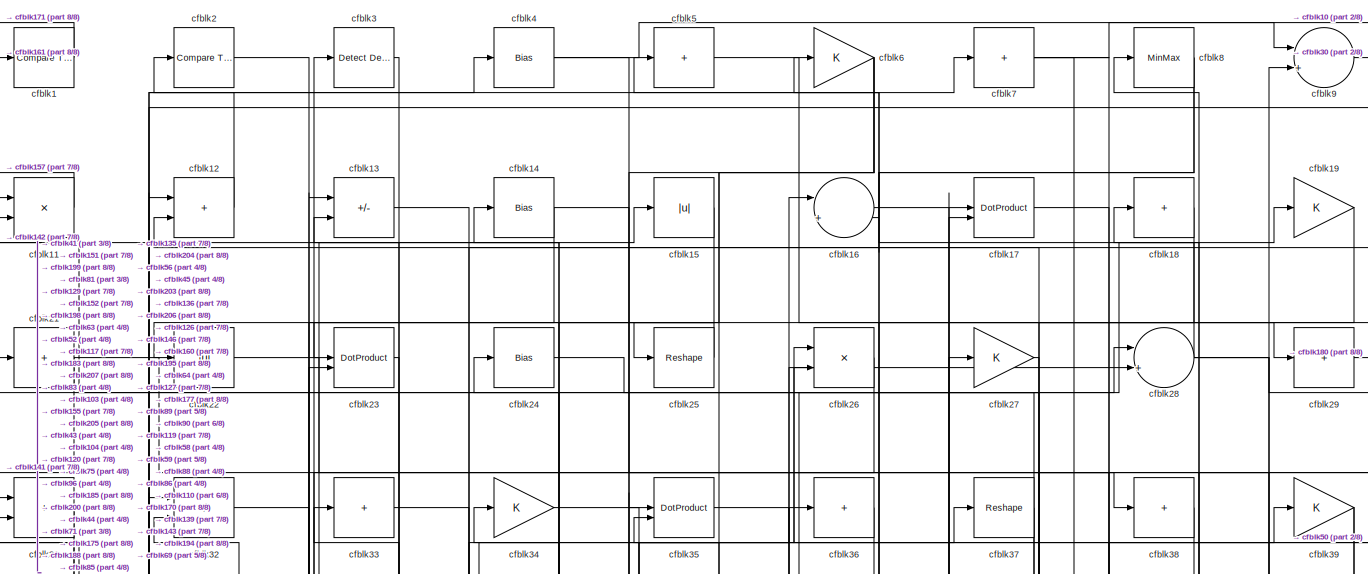
[diagram: root canvas - part 1/8, full width, top band]
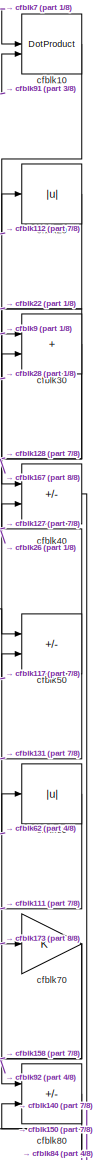
[diagram: root canvas - part 2/8, top right region]
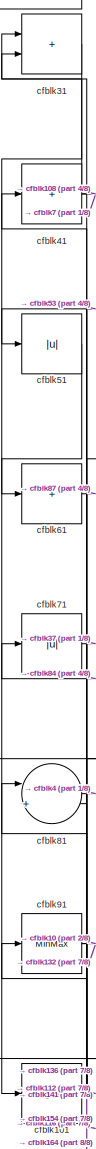
[diagram: root canvas - part 3/8, middle left region]
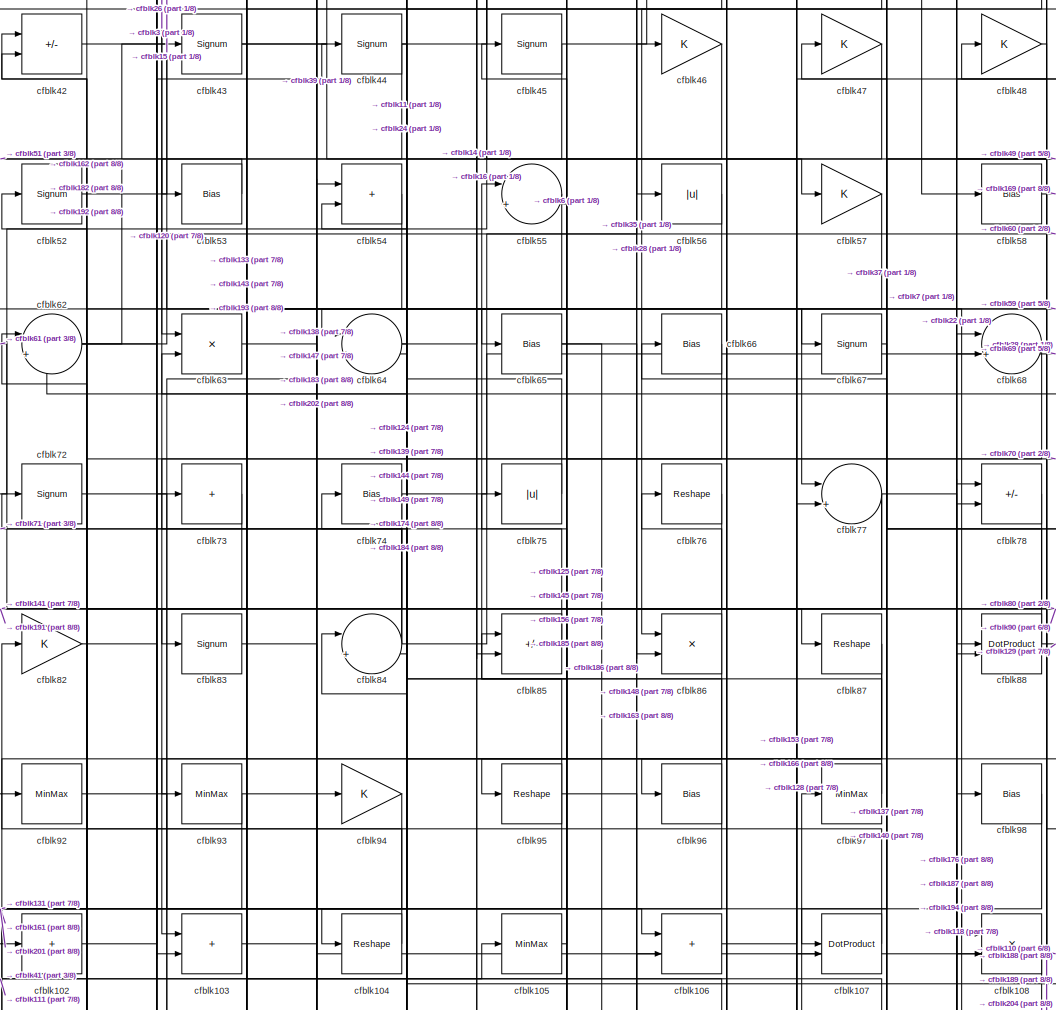
[diagram: root canvas - part 4/8, central region]
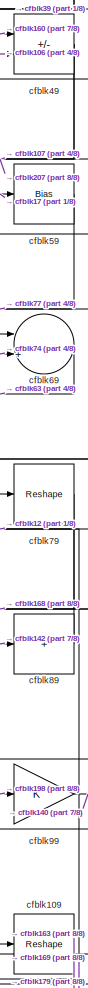
[diagram: root canvas - part 5/8, middle right region]
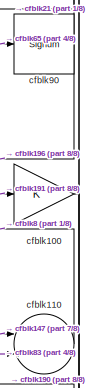
[diagram: root canvas - part 6/8, middle right region]
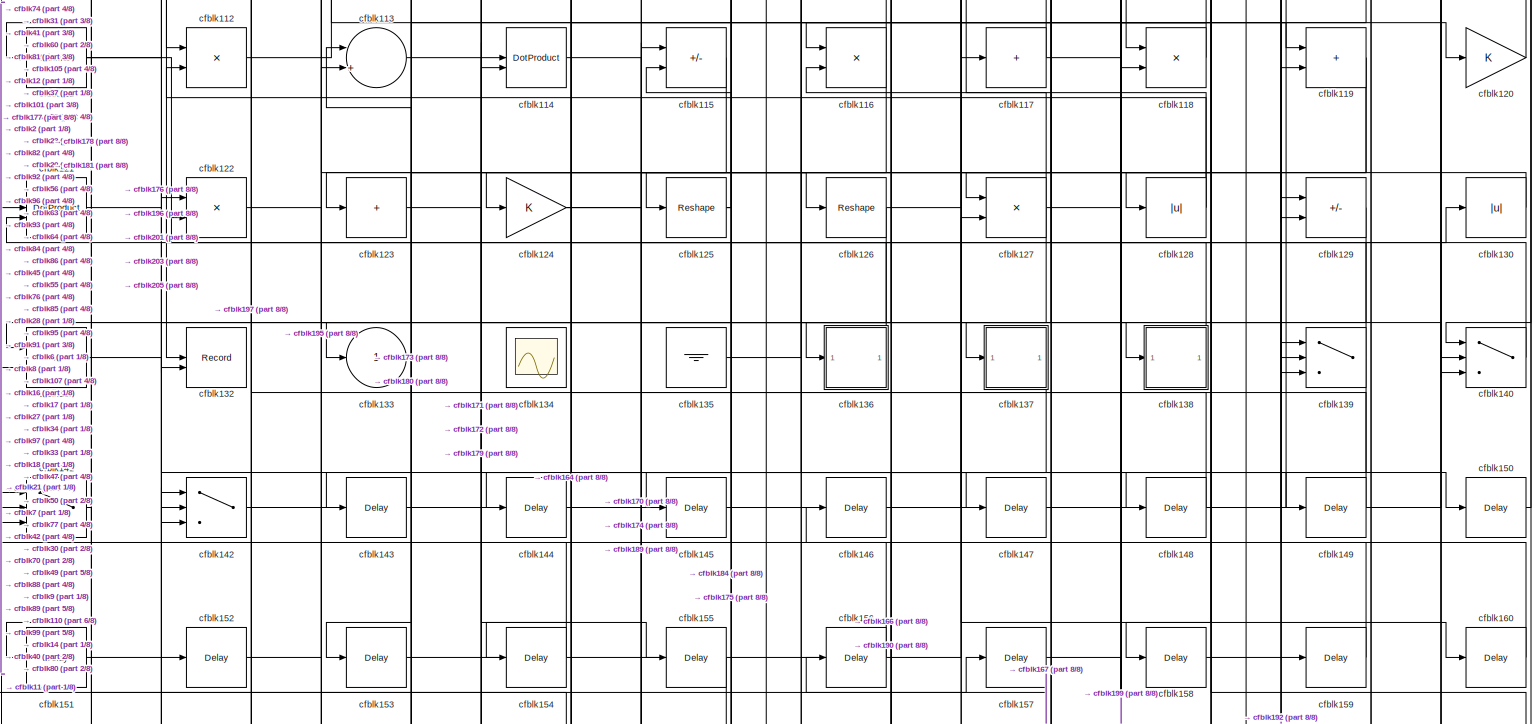
[diagram: root canvas - part 7/8, full width, middle band]
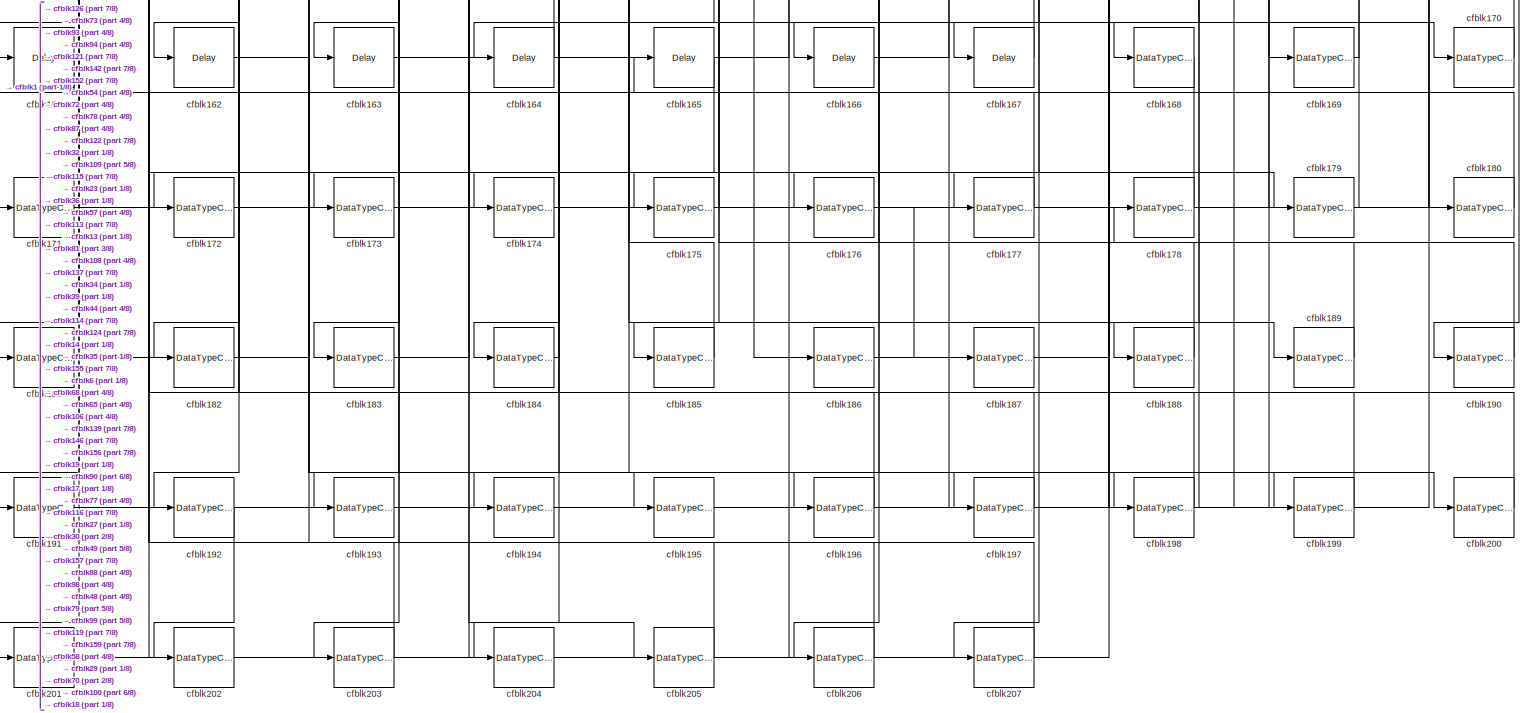
[diagram: root canvas - part 8/8, full width, bottom band]
MODEL slx_b92363ffedde
KIND model
CONFIG AbsTol = auto
CONFIG EnableMultiTasking = off
CONFIG FixedStep = auto
CONFIG MaxStep = auto
CONFIG MinStep = auto
CONFIG RelTol = 1e-3
CONFIG SampleTimeConstraint = Unconstrained
CONFIG SolverName = VariableStepAuto
CONFIG StartTime = 0.0
CONFIG StopTime = 10.0
BLOCK [Reference] cfblk1  REF=hdlsllib/Logic and Bit
Operations/Compare
To Zero
  SourceBlock = hdlsllib/Logic and Bit\nOperations/Compare\nTo Zero
  SourceType = Compare To Zero
BLOCK [DotProduct] cfblk10
  OutDataTypeStr = Inherit: Inherit via internal rule
BLOCK [Gain] cfblk100
BLOCK [Signum] cfblk101
BLOCK [Sum] cfblk102
  IconShape = rectangular
  Inputs = +
BLOCK [Sum] cfblk103
  IconShape = rectangular
BLOCK [Reshape] cfblk104
BLOCK [MinMax] cfblk105
BLOCK [Sum] cfblk106
  IconShape = rectangular
BLOCK [DotProduct] cfblk107
  OutDataTypeStr = Inherit: Inherit via internal rule
BLOCK [Product] cfblk108
  Inputs = */
  RndMeth = Zero
  SaturateOnIntegerOverflow = on
BLOCK [Reshape] cfblk109
BLOCK [Product] cfblk11
  Inputs = */
  RndMeth = Zero
  SaturateOnIntegerOverflow = on
BLOCK [Sum] cfblk110
  Inputs = |++
BLOCK [MinMax] cfblk111
BLOCK [Product] cfblk112
  Inputs = */
  RndMeth = Zero
  SaturateOnIntegerOverflow = on
BLOCK [Sum] cfblk113
  Inputs = |++
BLOCK [DotProduct] cfblk114
  OutDataTypeStr = Inherit: Inherit via internal rule
BLOCK [Sum] cfblk115
  IconShape = rectangular
  Inputs = +-
BLOCK [Product] cfblk116
  Inputs = */
  RndMeth = Zero
  SaturateOnIntegerOverflow = on
BLOCK [Sum] cfblk117
  IconShape = rectangular
  Inputs = +
BLOCK [Product] cfblk118
  Inputs = */
  RndMeth = Zero
  SaturateOnIntegerOverflow = on
BLOCK [Sum] cfblk119
  IconShape = rectangular
BLOCK [Sum] cfblk12
  IconShape = rectangular
BLOCK [Gain] cfblk120
BLOCK [DotProduct] cfblk121
  OutDataTypeStr = Inherit: Inherit via internal rule
BLOCK [Product] cfblk122
  Inputs = */
  RndMeth = Zero
  SaturateOnIntegerOverflow = on
BLOCK [Sum] cfblk123
  IconShape = rectangular
  Inputs = +
BLOCK [Gain] cfblk124
BLOCK [Reshape] cfblk125
BLOCK [Reshape] cfblk126
BLOCK [Product] cfblk127
  Inputs = */
  RndMeth = Zero
  SaturateOnIntegerOverflow = on
BLOCK [Abs] cfblk128
  SaturateOnIntegerOverflow = off
BLOCK [Sum] cfblk129
  IconShape = rectangular
  Inputs = +-
BLOCK [Sum] cfblk13
  IconShape = rectangular
  Inputs = +-
BLOCK [Abs] cfblk130
  SaturateOnIntegerOverflow = off
BLOCK [Product] cfblk131
  Inputs = */
  RndMeth = Zero
  SaturateOnIntegerOverflow = on
BLOCK [Record] cfblk132
  CompatibilityTag = XY
  FileSettingsInternal = {"entries":[{"content":{"excelSettings":{"content":{},"type":"Streamout.ExcelSettings"}},"type":"Streamout.FileSettingStorage","uuid":""}],"packageUris":["http:\/\/schema.mathworks.com\/mf0\/streamout_blocks\/R2020a"],"version":"1.0"}
  Layout = [1 1]
  SignalsInternal = {"entries":[{"content":{"signals":[{"content":{"blockPath":[],"dimensions":[1],"domain":"","lineColor":"#a2142f","plots":[1],"port":1,"signalID":2175,"signalName":"XY Graph:1"},"type":"RecordBlkView.Signal","uuid":""},{"content":{"blockPath":[],"dimensions":[1],"domain":"","lineColor":"#139fff","plots":[1],"port":2,"signalID":2178,"signalName":"XY Graph:2"},"type":"RecordBlkView.Signal","uuid":""}...<+146ch>
  VisualizationBindings = {"xyplotplugin":{"info":[{"series":[{"bindingParametersList":[{"parameter":"X-Axis","signalID":2175,"signalName":"XY Graph:1"},{"parameter":"Y-Axis","signalID":2178,"signalName":"XY Graph:2"}],"seriesID":40184}],"subplotID":1}]}}
  st = -1
BLOCK [Outport] cfblk133
  VectorParamsAs1DForOutWhenUnconnected = off
BLOCK [Scope] cfblk134
  Floating = on
  NumInputPorts = 1
  ScopeSpecificationString = Simulink.scopes.TimeScopeBlockCfg('CurrentConfiguration', extmgr.ConfigurationSet(extmgr.Configuration('Core','General UI',true,'FigureColor',[0.156862745098039 0.156862745098039 0.156862745098039]),extmgr.Configuration('Core','Source UI',true),extmgr.Configuration('Sources','WiredSimulink',true,'DataLoggingVariableName','ScopeData1','DataLoggingSaveFormat','StructureWithTime','DataLoggingLimitDat...<+2713ch>
BLOCK [Ground] cfblk135
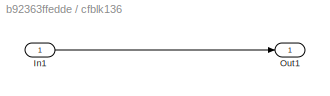
BLOCK [SubSystem] cfblk136
  LibrarySourceBlock = hdlsllib/Ports &\nSubsystems/Subsystem
BLOCK [Inport] cfblk136/In1
BLOCK [Outport] cfblk136/Out1
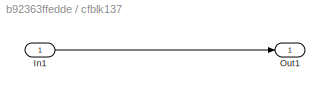
BLOCK [SubSystem] cfblk137
  LibrarySourceBlock = hdlsllib/Ports &\nSubsystems/Subsystem
BLOCK [Inport] cfblk137/In1
BLOCK [Outport] cfblk137/Out1
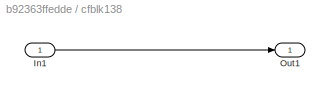
BLOCK [SubSystem] cfblk138
  LibrarySourceBlock = hdlsllib/Ports &\nSubsystems/Subsystem
BLOCK [Inport] cfblk138/In1
BLOCK [Outport] cfblk138/Out1
BLOCK [Switch] cfblk139
  InputSameDT = off
  SaturateOnIntegerOverflow = off
BLOCK [Bias] cfblk14
  Bias = 0.0
  SaturateOnIntegerOverflow = off
BLOCK [Switch] cfblk140
  InputSameDT = off
  SaturateOnIntegerOverflow = off
BLOCK [Switch] cfblk141
  InputSameDT = off
  SaturateOnIntegerOverflow = off
BLOCK [Switch] cfblk142
  InputSameDT = off
  SaturateOnIntegerOverflow = off
BLOCK [Delay] cfblk143
  InputPortMap = u0
  SampleTime = 1
BLOCK [Delay] cfblk144
  InputPortMap = u0
  SampleTime = 1
BLOCK [Delay] cfblk145
  InputPortMap = u0
  SampleTime = 1
BLOCK [Delay] cfblk146
  InputPortMap = u0
  SampleTime = 1
BLOCK [Delay] cfblk147
  InputPortMap = u0
  SampleTime = 1
BLOCK [Delay] cfblk148
  InputPortMap = u0
  SampleTime = 1
BLOCK [Delay] cfblk149
  InputPortMap = u0
  SampleTime = 1
BLOCK [Abs] cfblk15
  SaturateOnIntegerOverflow = off
BLOCK [Delay] cfblk150
  InputPortMap = u0
  SampleTime = 1
BLOCK [Delay] cfblk151
  InputPortMap = u0
  SampleTime = 1
BLOCK [Delay] cfblk152
  InputPortMap = u0
  SampleTime = 1
BLOCK [Delay] cfblk153
  InputPortMap = u0
  SampleTime = 1
BLOCK [Delay] cfblk154
  InputPortMap = u0
  SampleTime = 1
BLOCK [Delay] cfblk155
  InputPortMap = u0
  SampleTime = 1
BLOCK [Delay] cfblk156
  InputPortMap = u0
  SampleTime = 1
BLOCK [Delay] cfblk157
  InputPortMap = u0
  SampleTime = 1
BLOCK [Delay] cfblk158
  InputPortMap = u0
  SampleTime = 1
BLOCK [Delay] cfblk159
  InputPortMap = u0
  SampleTime = 1
BLOCK [Sum] cfblk16
  Inputs = |++
BLOCK [Delay] cfblk160
  InputPortMap = u0
  SampleTime = 1
BLOCK [Delay] cfblk161
  InputPortMap = u0
  SampleTime = 1
BLOCK [Delay] cfblk162
  InputPortMap = u0
  SampleTime = 1
BLOCK [Delay] cfblk163
  InputPortMap = u0
  SampleTime = 1
BLOCK [Delay] cfblk164
  InputPortMap = u0
  SampleTime = 1
BLOCK [Delay] cfblk165
  InputPortMap = u0
  SampleTime = 1
BLOCK [Delay] cfblk166
  InputPortMap = u0
  SampleTime = 1
BLOCK [Delay] cfblk167
  InputPortMap = u0
  SampleTime = 1
BLOCK [DataTypeConversion] cfblk168
  OutDataTypeStr = uint8
  RndMeth = Floor
  SaturateOnIntegerOverflow = off
BLOCK [DataTypeConversion] cfblk169
  OutDataTypeStr = uint8
  RndMeth = Floor
  SaturateOnIntegerOverflow = off
BLOCK [DotProduct] cfblk17
  OutDataTypeStr = Inherit: Inherit via internal rule
BLOCK [DataTypeConversion] cfblk170
  OutDataTypeStr = uint8
  RndMeth = Floor
  SaturateOnIntegerOverflow = off
BLOCK [DataTypeConversion] cfblk171
  OutDataTypeStr = uint8
  RndMeth = Floor
  SaturateOnIntegerOverflow = off
BLOCK [DataTypeConversion] cfblk172
  OutDataTypeStr = uint8
  RndMeth = Floor
  SaturateOnIntegerOverflow = off
BLOCK [DataTypeConversion] cfblk173
  RndMeth = Floor
  SaturateOnIntegerOverflow = off
BLOCK [DataTypeConversion] cfblk174
  OutDataTypeStr = uint8
  RndMeth = Floor
  SaturateOnIntegerOverflow = off
BLOCK [DataTypeConversion] cfblk175
  OutDataTypeStr = uint8
  RndMeth = Floor
  SaturateOnIntegerOverflow = off
BLOCK [DataTypeConversion] cfblk176
  RndMeth = Floor
  SaturateOnIntegerOverflow = off
BLOCK [DataTypeConversion] cfblk177
  OutDataTypeStr = uint8
  RndMeth = Floor
  SaturateOnIntegerOverflow = off
BLOCK [DataTypeConversion] cfblk178
  OutDataTypeStr = uint8
  RndMeth = Floor
  SaturateOnIntegerOverflow = off
BLOCK [DataTypeConversion] cfblk179
  OutDataTypeStr = uint8
  RndMeth = Floor
  SaturateOnIntegerOverflow = off
BLOCK [Sum] cfblk18
  IconShape = rectangular
  Inputs = +
BLOCK [DataTypeConversion] cfblk180
  OutDataTypeStr = uint8
  RndMeth = Floor
  SaturateOnIntegerOverflow = off
BLOCK [DataTypeConversion] cfblk181
  OutDataTypeStr = uint8
  RndMeth = Floor
  SaturateOnIntegerOverflow = off
BLOCK [DataTypeConversion] cfblk182
  OutDataTypeStr = uint8
  RndMeth = Floor
  SaturateOnIntegerOverflow = off
BLOCK [DataTypeConversion] cfblk183
  OutDataTypeStr = uint8
  RndMeth = Floor
  SaturateOnIntegerOverflow = off
BLOCK [DataTypeConversion] cfblk184
  OutDataTypeStr = uint8
  RndMeth = Floor
  SaturateOnIntegerOverflow = off
BLOCK [DataTypeConversion] cfblk185
  OutDataTypeStr = uint8
  RndMeth = Floor
  SaturateOnIntegerOverflow = off
BLOCK [DataTypeConversion] cfblk186
  OutDataTypeStr = uint8
  RndMeth = Floor
  SaturateOnIntegerOverflow = off
BLOCK [DataTypeConversion] cfblk187
  OutDataTypeStr = uint8
  RndMeth = Floor
  SaturateOnIntegerOverflow = off
BLOCK [DataTypeConversion] cfblk188
  OutDataTypeStr = uint8
  RndMeth = Floor
  SaturateOnIntegerOverflow = off
BLOCK [DataTypeConversion] cfblk189
  OutDataTypeStr = uint8
  RndMeth = Floor
  SaturateOnIntegerOverflow = off
BLOCK [Gain] cfblk19
BLOCK [DataTypeConversion] cfblk190
  OutDataTypeStr = uint8
  RndMeth = Floor
  SaturateOnIntegerOverflow = off
BLOCK [DataTypeConversion] cfblk191
  OutDataTypeStr = uint8
  RndMeth = Floor
  SaturateOnIntegerOverflow = off
BLOCK [DataTypeConversion] cfblk192
  RndMeth = Floor
  SaturateOnIntegerOverflow = off
BLOCK [DataTypeConversion] cfblk193
  OutDataTypeStr = uint8
  RndMeth = Floor
  SaturateOnIntegerOverflow = off
BLOCK [DataTypeConversion] cfblk194
  OutDataTypeStr = uint8
  RndMeth = Floor
  SaturateOnIntegerOverflow = off
BLOCK [DataTypeConversion] cfblk195
  OutDataTypeStr = uint8
  RndMeth = Floor
  SaturateOnIntegerOverflow = off
BLOCK [DataTypeConversion] cfblk196
  OutDataTypeStr = uint8
  RndMeth = Floor
  SaturateOnIntegerOverflow = off
BLOCK [DataTypeConversion] cfblk197
  OutDataTypeStr = uint8
  RndMeth = Floor
  SaturateOnIntegerOverflow = off
BLOCK [DataTypeConversion] cfblk198
  RndMeth = Floor
  SaturateOnIntegerOverflow = off
BLOCK [DataTypeConversion] cfblk199
  OutDataTypeStr = uint8
  RndMeth = Floor
  SaturateOnIntegerOverflow = off
BLOCK [Reference] cfblk2  REF=hdlsllib/Logic and Bit
Operations/Compare
To Constant
  SourceBlock = hdlsllib/Logic and Bit\nOperations/Compare\nTo Constant
  SourceType = Compare To Constant
BLOCK [Abs] cfblk20
  SaturateOnIntegerOverflow = off
BLOCK [DataTypeConversion] cfblk200
  OutDataTypeStr = uint8
  RndMeth = Floor
  SaturateOnIntegerOverflow = off
BLOCK [DataTypeConversion] cfblk201
  RndMeth = Floor
  SaturateOnIntegerOverflow = off
BLOCK [DataTypeConversion] cfblk202
  OutDataTypeStr = uint8
  RndMeth = Floor
  SaturateOnIntegerOverflow = off
BLOCK [DataTypeConversion] cfblk203
  OutDataTypeStr = uint8
  RndMeth = Floor
  SaturateOnIntegerOverflow = off
BLOCK [DataTypeConversion] cfblk204
  OutDataTypeStr = uint8
  RndMeth = Floor
  SaturateOnIntegerOverflow = off
BLOCK [DataTypeConversion] cfblk205
  OutDataTypeStr = uint8
  RndMeth = Floor
  SaturateOnIntegerOverflow = off
BLOCK [DataTypeConversion] cfblk206
  OutDataTypeStr = uint8
  RndMeth = Floor
  SaturateOnIntegerOverflow = off
BLOCK [DataTypeConversion] cfblk207
  OutDataTypeStr = uint8
  RndMeth = Floor
  SaturateOnIntegerOverflow = off
BLOCK [Sum] cfblk21
  IconShape = rectangular
  Inputs = +
BLOCK [Abs] cfblk22
  SaturateOnIntegerOverflow = off
BLOCK [DotProduct] cfblk23
  OutDataTypeStr = Inherit: Inherit via internal rule
BLOCK [Bias] cfblk24
  Bias = 0.0
  SaturateOnIntegerOverflow = off
BLOCK [Reshape] cfblk25
BLOCK [Product] cfblk26
  Inputs = */
  RndMeth = Zero
  SaturateOnIntegerOverflow = on
BLOCK [Gain] cfblk27
BLOCK [Sum] cfblk28
  Inputs = |++
BLOCK [Sum] cfblk29
  IconShape = rectangular
  Inputs = +
BLOCK [Reference] cfblk3  REF=simulink/Logic and Bit
Operations/Detect
Decrease
  LibrarySourceBlock = hdlsllib/Logic and Bit\nOperations/Detect\nDecrease
  SourceBlock = simulink/Logic and Bit\nOperations/Detect\nDecrease
  SourceType = Detect Decrease
BLOCK [Sum] cfblk30
  IconShape = rectangular
BLOCK [Sum] cfblk31
  IconShape = rectangular
BLOCK [Sum] cfblk32
  IconShape = rectangular
  Inputs = +-
BLOCK [Sum] cfblk33
  IconShape = rectangular
  Inputs = +
BLOCK [Gain] cfblk34
BLOCK [DotProduct] cfblk35
  OutDataTypeStr = Inherit: Inherit via internal rule
BLOCK [Sum] cfblk36
  IconShape = rectangular
  Inputs = +
BLOCK [Reshape] cfblk37
BLOCK [Sum] cfblk38
  IconShape = rectangular
  Inputs = +
BLOCK [Gain] cfblk39
BLOCK [Bias] cfblk4
  Bias = 0.0
  SaturateOnIntegerOverflow = off
BLOCK [Sum] cfblk40
  IconShape = rectangular
  Inputs = +-
BLOCK [Sum] cfblk41
  IconShape = rectangular
  Inputs = +
BLOCK [Sum] cfblk42
  IconShape = rectangular
  Inputs = +-
BLOCK [Signum] cfblk43
BLOCK [Signum] cfblk44
BLOCK [Signum] cfblk45
BLOCK [Gain] cfblk46
BLOCK [Gain] cfblk47
BLOCK [Gain] cfblk48
BLOCK [Sum] cfblk49
  IconShape = rectangular
  Inputs = +-
BLOCK [Sum] cfblk5
  IconShape = rectangular
  Inputs = +
BLOCK [Sum] cfblk50
  IconShape = rectangular
  Inputs = +-
BLOCK [Abs] cfblk51
  SaturateOnIntegerOverflow = off
BLOCK [Signum] cfblk52
BLOCK [Bias] cfblk53
  Bias = 0.0
  SaturateOnIntegerOverflow = off
BLOCK [Sum] cfblk54
  IconShape = rectangular
BLOCK [Sum] cfblk55
  Inputs = |++
BLOCK [Abs] cfblk56
  SaturateOnIntegerOverflow = off
BLOCK [Gain] cfblk57
BLOCK [Bias] cfblk58
  Bias = 0.0
  SaturateOnIntegerOverflow = off
BLOCK [Bias] cfblk59
  Bias = 0.0
  SaturateOnIntegerOverflow = off
BLOCK [Gain] cfblk6
BLOCK [Abs] cfblk60
  SaturateOnIntegerOverflow = off
BLOCK [Sum] cfblk61
  IconShape = rectangular
  Inputs = +
BLOCK [Sum] cfblk62
  Inputs = |++
BLOCK [Product] cfblk63
  Inputs = */
  RndMeth = Zero
  SaturateOnIntegerOverflow = on
BLOCK [Sum] cfblk64
  Inputs = |++
BLOCK [Bias] cfblk65
  Bias = 0.0
  SaturateOnIntegerOverflow = off
BLOCK [Bias] cfblk66
  Bias = 0.0
  SaturateOnIntegerOverflow = off
BLOCK [Signum] cfblk67
BLOCK [Sum] cfblk68
  Inputs = |++
BLOCK [Sum] cfblk69
  Inputs = |++
BLOCK [Sum] cfblk7
  IconShape = rectangular
  Inputs = +
BLOCK [Gain] cfblk70
BLOCK [Abs] cfblk71
  SaturateOnIntegerOverflow = off
BLOCK [Signum] cfblk72
BLOCK [Sum] cfblk73
  IconShape = rectangular
  Inputs = +
BLOCK [Bias] cfblk74
  Bias = 0.0
  SaturateOnIntegerOverflow = off
BLOCK [Abs] cfblk75
  SaturateOnIntegerOverflow = off
BLOCK [Reshape] cfblk76
BLOCK [Sum] cfblk77
  Inputs = |++
BLOCK [Sum] cfblk78
  IconShape = rectangular
  Inputs = +-
BLOCK [Reshape] cfblk79
BLOCK [MinMax] cfblk8
BLOCK [Sum] cfblk80
  IconShape = rectangular
  Inputs = +-
BLOCK [Sum] cfblk81
  Inputs = |++
BLOCK [Gain] cfblk82
BLOCK [Signum] cfblk83
BLOCK [Sum] cfblk84
  Inputs = |++
BLOCK [Sum] cfblk85
  IconShape = rectangular
  Inputs = +-
BLOCK [Product] cfblk86
  Inputs = */
  RndMeth = Zero
  SaturateOnIntegerOverflow = on
BLOCK [Reshape] cfblk87
BLOCK [DotProduct] cfblk88
  OutDataTypeStr = Inherit: Inherit via internal rule
BLOCK [Sum] cfblk89
  IconShape = rectangular
  Inputs = +
BLOCK [Sum] cfblk9
  Inputs = |++
BLOCK [Signum] cfblk90
BLOCK [MinMax] cfblk91
BLOCK [MinMax] cfblk92
BLOCK [MinMax] cfblk93
BLOCK [Gain] cfblk94
BLOCK [Reshape] cfblk95
BLOCK [Bias] cfblk96
  Bias = 0.0
  SaturateOnIntegerOverflow = off
BLOCK [MinMax] cfblk97
BLOCK [Bias] cfblk98
  Bias = 0.0
  SaturateOnIntegerOverflow = off
BLOCK [Gain] cfblk99
LINE cfblk100:1 -> cfblk190:1
LINE cfblk101:1 -> cfblk112:1
LINE cfblk102:1 -> cfblk73:1
LINE cfblk103:1 -> cfblk39:1
LINE cfblk104:1 -> cfblk82:1
LINE cfblk105:1 -> cfblk75:1
LINE cfblk106:1 -> cfblk49:2
LINE cfblk107:1 -> cfblk42:1
LINE cfblk108:1 -> cfblk204:1
LINE cfblk109:1 -> cfblk163:1
LINE cfblk10:1 -> cfblk40:1
LINE cfblk110:1 -> cfblk8:1
NET cfblk111:1 -> cfblk105:1, cfblk130:1
LINE cfblk112:1 -> cfblk20:1
LINE cfblk113:1 -> cfblk179:1
LINE cfblk114:1 -> cfblk170:1
LINE cfblk115:1 -> cfblk173:1
NET cfblk116:1 -> cfblk125:1, cfblk91:1
NET cfblk117:1 -> cfblk33:1, cfblk50:2
LINE cfblk118:1 -> cfblk116:1
NET cfblk119:1 -> cfblk153:1, cfblk154:1
LINE cfblk11:1 -> cfblk157:1
LINE cfblk120:1 -> cfblk14:1
LINE cfblk121:1 -> cfblk176:1
LINE cfblk122:1 -> cfblk195:1
LINE cfblk123:1 -> cfblk150:1
NET cfblk124:1 -> cfblk126:1, cfblk189:1
NET cfblk125:1 -> cfblk45:1, cfblk85:1
NET cfblk126:1 -> cfblk181:1, cfblk27:1
NET cfblk127:1 -> cfblk132:2, cfblk40:2, cfblk6:1
NET cfblk128:1 -> cfblk112:2, cfblk97:1
LINE cfblk129:1 -> cfblk151:1
LINE cfblk12:1 -> cfblk2:1
LINE cfblk130:1 -> cfblk123:1
LINE cfblk131:1 -> cfblk149:1
LINE cfblk135:1 -> cfblk28:2
LINE cfblk136/In1:1 -> cfblk136/Out1:1
LINE cfblk136:1 -> cfblk81:1
LINE cfblk137/In1:1 -> cfblk137/Out1:1
LINE cfblk137:1 -> cfblk164:1
LINE cfblk138/In1:1 -> cfblk138/Out1:1
LINE cfblk138:1 -> cfblk52:1
NET cfblk139:1 -> cfblk166:1, cfblk74:1
LINE cfblk13:1 -> cfblk205:1
LINE cfblk140:1 -> cfblk47:1
LINE cfblk141:1 -> cfblk41:1
LINE cfblk142:1 -> cfblk89:1
LINE cfblk143:1 -> cfblk9:2
LINE cfblk144:1 -> cfblk118:2
LINE cfblk145:1 -> cfblk127:2
LINE cfblk146:1 -> cfblk17:2
LINE cfblk147:1 -> cfblk110:1
LINE cfblk148:1 -> cfblk42:2
LINE cfblk149:1 -> cfblk84:1
NET cfblk14:1 -> cfblk103:2, cfblk200:1
LINE cfblk150:1 -> cfblk80:2
LINE cfblk151:1 -> cfblk12:1
LINE cfblk152:1 -> cfblk23:2
LINE cfblk153:1 -> cfblk107:2
LINE cfblk154:1 -> cfblk31:2
LINE cfblk155:1 -> cfblk184:1
LINE cfblk156:1 -> cfblk55:2
LINE cfblk157:1 -> cfblk199:1
LINE cfblk158:1 -> cfblk139:1
LINE cfblk159:1 -> cfblk141:2
LINE cfblk15:1 -> cfblk104:1
LINE cfblk160:1 -> cfblk49:1
LINE cfblk161:1 -> cfblk1:1
LINE cfblk162:1 -> cfblk197:1
LINE cfblk163:1 -> cfblk106:2
LINE cfblk164:1 -> cfblk81:2
LINE cfblk165:1 -> cfblk172:1
LINE cfblk166:1 -> cfblk77:2
LINE cfblk167:1 -> cfblk116:2
LINE cfblk168:1 -> cfblk165:1
LINE cfblk169:1 -> cfblk79:1
LINE cfblk16:1 -> cfblk160:1
LINE cfblk170:1 -> cfblk18:1
LINE cfblk171:1 -> cfblk114:1
LINE cfblk172:1 -> cfblk114:2
NET cfblk173:1 -> cfblk159:1, cfblk70:1
LINE cfblk174:1 -> cfblk115:1
LINE cfblk175:1 -> cfblk115:2
NET cfblk176:1 -> cfblk156:1, cfblk187:1, cfblk88:2
LINE cfblk177:1 -> cfblk121:1
LINE cfblk178:1 -> cfblk121:2
LINE cfblk179:1 -> cfblk109:1
LINE cfblk17:1 -> cfblk59:1
LINE cfblk180:1 -> cfblk113:1
LINE cfblk181:1 -> cfblk113:2
LINE cfblk182:1 -> cfblk72:1
LINE cfblk183:1 -> cfblk54:1
LINE cfblk184:1 -> cfblk54:2
LINE cfblk185:1 -> cfblk35:1
LINE cfblk186:1 -> cfblk68:1
LINE cfblk187:1 -> cfblk68:2
LINE cfblk188:1 -> cfblk35:2
LINE cfblk189:1 -> cfblk48:1
LINE cfblk18:1 -> cfblk127:1
LINE cfblk190:1 -> cfblk146:1
LINE cfblk191:1 -> cfblk100:1
NET cfblk192:1 -> cfblk119:2, cfblk202:1
LINE cfblk193:1 -> cfblk78:1
LINE cfblk194:1 -> cfblk78:2
LINE cfblk195:1 -> cfblk17:1
LINE cfblk196:1 -> cfblk122:1
LINE cfblk197:1 -> cfblk122:2
NET cfblk198:1 -> cfblk178:1, cfblk34:1, cfblk99:1
LINE cfblk199:1 -> cfblk32:1
LINE cfblk19:1 -> cfblk206:1
LINE cfblk1:1 -> cfblk171:1
LINE cfblk200:1 -> cfblk32:2
NET cfblk201:1 -> cfblk152:1, cfblk98:1
LINE cfblk202:1 -> cfblk94:1
LINE cfblk203:1 -> cfblk142:1
LINE cfblk204:1 -> cfblk36:1
LINE cfblk205:1 -> cfblk142:2
LINE cfblk206:1 -> cfblk13:1
LINE cfblk207:1 -> cfblk13:2
LINE cfblk20:1 -> cfblk80:1
NET cfblk21:1 -> cfblk139:2, cfblk141:1
LINE cfblk22:1 -> cfblk88:1
LINE cfblk23:1 -> cfblk183:1
LINE cfblk24:1 -> cfblk19:1
LINE cfblk25:1 -> cfblk23:1
LINE cfblk26:1 -> cfblk63:1
LINE cfblk27:1 -> cfblk177:1
NET cfblk28:1 -> cfblk30:2, cfblk50:1, cfblk5:1
LINE cfblk29:1 -> cfblk180:1
LINE cfblk2:1 -> cfblk129:2
NET cfblk30:1 -> cfblk128:1, cfblk167:1, cfblk22:1
LINE cfblk31:1 -> cfblk101:1
LINE cfblk32:1 -> cfblk198:1
LINE cfblk33:1 -> cfblk155:1
LINE cfblk34:1 -> cfblk117:1
LINE cfblk35:1 -> cfblk56:1
LINE cfblk36:1 -> cfblk203:1
NET cfblk37:1 -> cfblk11:2, cfblk142:3, cfblk64:1
LINE cfblk38:1 -> cfblk86:1
NET cfblk39:1 -> cfblk194:1, cfblk69:1
LINE cfblk3:1 -> cfblk83:1
LINE cfblk40:1 -> cfblk140:1
NET cfblk41:1 -> cfblk108:2, cfblk31:1, cfblk7:1
LINE cfblk42:1 -> cfblk118:1
NET cfblk43:1 -> cfblk26:2, cfblk57:1
NET cfblk44:1 -> cfblk16:1, cfblk174:1, cfblk53:1
NET cfblk45:1 -> cfblk28:1, cfblk64:2
LINE cfblk46:1 -> cfblk95:1
LINE cfblk47:1 -> cfblk96:1
LINE cfblk48:1 -> cfblk188:1
NET cfblk49:1 -> cfblk107:1, cfblk207:1
NET cfblk4:1 -> cfblk38:1, cfblk9:1
NET cfblk50:1 -> cfblk131:1, cfblk26:1
LINE cfblk51:1 -> cfblk61:1
LINE cfblk52:1 -> cfblk15:1
LINE cfblk53:1 -> cfblk51:1
LINE cfblk54:1 -> cfblk182:1
LINE cfblk55:1 -> cfblk65:1
LINE cfblk56:1 -> cfblk143:1
LINE cfblk57:1 -> cfblk193:1
LINE cfblk58:1 -> cfblk169:1
LINE cfblk59:1 -> cfblk77:1
LINE cfblk5:1 -> cfblk29:1
LINE cfblk60:1 -> cfblk111:1
LINE cfblk61:1 -> cfblk87:1
NET cfblk62:1 -> cfblk43:1, cfblk44:1, cfblk60:1
LINE cfblk63:1 -> cfblk147:1
NET cfblk64:1 -> cfblk124:1, cfblk67:1
NET cfblk65:1 -> cfblk186:1, cfblk90:1
LINE cfblk66:1 -> cfblk103:1
LINE cfblk67:1 -> cfblk137:1
LINE cfblk68:1 -> cfblk185:1
LINE cfblk69:1 -> cfblk63:2
NET cfblk6:1 -> cfblk175:1, cfblk25:1, cfblk85:2
NET cfblk70:1 -> cfblk158:1, cfblk92:1
LINE cfblk71:1 -> cfblk37:1
LINE cfblk72:1 -> cfblk106:1
LINE cfblk73:1 -> cfblk191:1
NET cfblk74:1 -> cfblk141:3, cfblk69:2
LINE cfblk75:1 -> cfblk24:1
LINE cfblk76:1 -> cfblk145:1
NET cfblk77:1 -> cfblk102:1, cfblk139:3, cfblk86:2
LINE cfblk78:1 -> cfblk192:1
LINE cfblk79:1 -> cfblk168:1
NET cfblk7:1 -> cfblk10:1, cfblk119:1, cfblk58:1
LINE cfblk80:1 -> cfblk84:2
LINE cfblk81:1 -> cfblk4:1
LINE cfblk82:1 -> cfblk140:2
LINE cfblk83:1 -> cfblk110:2
NET cfblk84:1 -> cfblk46:1, cfblk62:1, cfblk71:1
LINE cfblk85:1 -> cfblk3:1
NET cfblk86:1 -> cfblk144:1, cfblk76:1
NET cfblk87:1 -> cfblk162:1, cfblk93:1
NET cfblk88:1 -> cfblk129:1, cfblk66:1
LINE cfblk89:1 -> cfblk12:2
NET cfblk8:1 -> cfblk136:1, cfblk16:2
NET cfblk90:1 -> cfblk196:1, cfblk21:1
NET cfblk91:1 -> cfblk10:2, cfblk132:1
LINE cfblk92:1 -> cfblk120:1
NET cfblk93:1 -> cfblk138:1, cfblk161:1
LINE cfblk94:1 -> cfblk201:1
NET cfblk95:1 -> cfblk131:2, cfblk148:1, cfblk62:2
NET cfblk96:1 -> cfblk11:1, cfblk133:1
LINE cfblk97:1 -> cfblk55:1
LINE cfblk98:1 -> cfblk108:1
LINE cfblk99:1 -> cfblk140:3
LINE cfblk9:1 -> cfblk30:1
note: NET lines group one-source signal fan-out (src -> all destinations, sorted); 1:1 wires keep LINE
